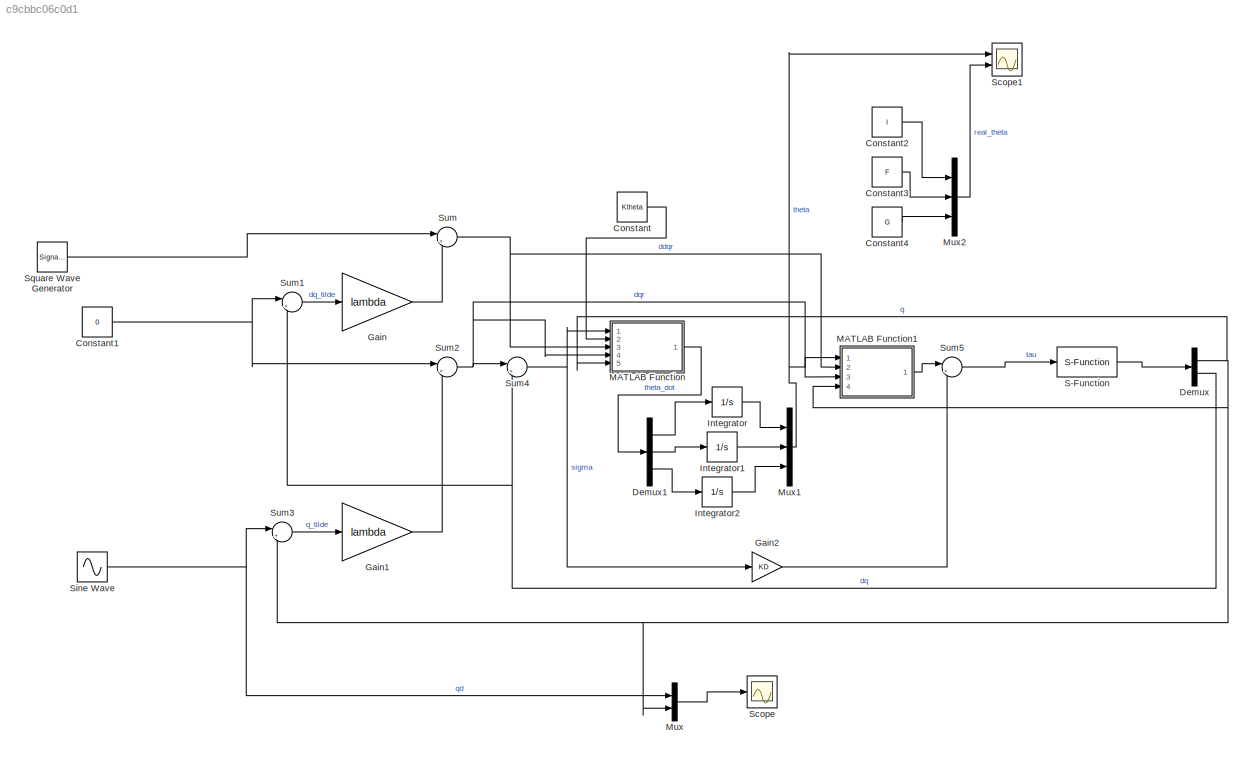
MODEL slx_c9cbbc06c0d1
KIND model
CONFIG AbsTol = auto
CONFIG EnableMultiTasking = off
CONFIG FixedStep = auto
CONFIG MaxStep = auto
CONFIG MinStep = auto
CONFIG RelTol = 1e-3
CONFIG SampleTimeConstraint = Unconstrained
CONFIG SolverName = VariableStepAuto
CONFIG StartTime = 0.0
CONFIG StopTime = 10.0
BLOCK [Constant] Constant
  Value = Ktheta
BLOCK [Constant] Constant1
  Value = 0
BLOCK [Constant] Constant2
  Value = I
BLOCK [Constant] Constant3
  Value = F
BLOCK [Constant] Constant4
  Value = G
BLOCK [Demux] Demux
  Outputs = 2
  Ports = [1, 2]
BLOCK [Demux] Demux1
  Outputs = 3
  Ports = [1, 3]
BLOCK [Gain] Gain
  Gain = lambda
BLOCK [Gain] Gain1
  Gain = lambda
BLOCK [Gain] Gain2
  Gain = KD
BLOCK [Integrator] Integrator
  InitialCondition = I_est
  Ports = [1, 1]
BLOCK [Integrator] Integrator1
  InitialCondition = F_est
  Ports = [1, 1]
BLOCK [Integrator] Integrator2
  InitialCondition = G_est
  Ports = [1, 1]
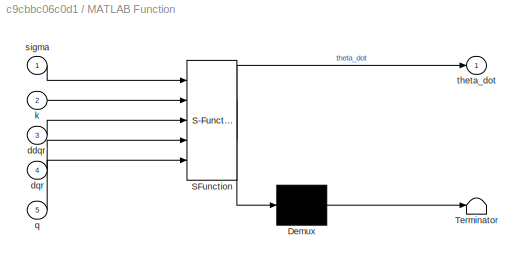
BLOCK [SubSystem] MATLAB Function
  ErrorFcn = Stateflow.Translate.translate
  PermitHierarchicalResolution = ExplicitOnly
  Ports = [5, 1]
  RequestExecContextInheritance = off
  SFBlockType = MATLAB Function
  TreatAsAtomicUnit = on
BLOCK [Demux] MATLAB Function/ Demux 
  Outputs = 1
  Ports = [1, 1]
BLOCK [S-Function] MATLAB Function/ SFunction 
  EnableBusSupport = on
  FunctionName = sf_sfun
  PortCounts = [5 2]
  Ports = [5, 2]
  SFcnIsStateOwnerBlock = off
  SFunctionDeploymentMode = off
  Tag = Stateflow S-Function 2
BLOCK [Terminator] MATLAB Function/ Terminator 
BLOCK [Inport] MATLAB Function/ddqr
  Port = 3
BLOCK [Inport] MATLAB Function/dqr
  Port = 4
BLOCK [Inport] MATLAB Function/k
  Port = 2
BLOCK [Inport] MATLAB Function/q
  Port = 5
BLOCK [Inport] MATLAB Function/sigma
BLOCK [Outport] MATLAB Function/theta_dot
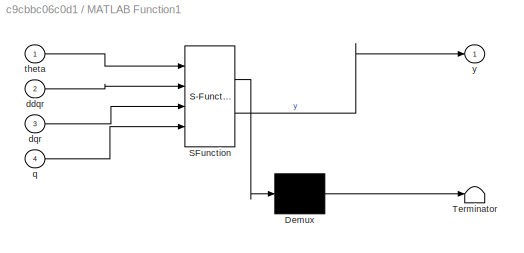
BLOCK [SubSystem] MATLAB Function1
  ErrorFcn = Stateflow.Translate.translate
  PermitHierarchicalResolution = ExplicitOnly
  Ports = [4, 1]
  RequestExecContextInheritance = off
  SFBlockType = MATLAB Function
  TreatAsAtomicUnit = on
BLOCK [Demux] MATLAB Function1/ Demux 
  Outputs = 1
  Ports = [1, 1]
BLOCK [S-Function] MATLAB Function1/ SFunction 
  EnableBusSupport = on
  FunctionName = sf_sfun
  PortCounts = [4 2]
  Ports = [4, 2]
  SFcnIsStateOwnerBlock = off
  SFunctionDeploymentMode = off
  Tag = Stateflow S-Function 1
BLOCK [Terminator] MATLAB Function1/ Terminator 
BLOCK [Inport] MATLAB Function1/ddqr
  Port = 2
BLOCK [Inport] MATLAB Function1/dqr
  Port = 3
BLOCK [Inport] MATLAB Function1/q
  Port = 4
BLOCK [Inport] MATLAB Function1/theta
BLOCK [Outport] MATLAB Function1/y
BLOCK [Mux] Mux
  DisplayOption = bar
  Inputs = 2
  Ports = [2, 1]
BLOCK [Mux] Mux1
  DisplayOption = bar
  Inputs = 3
  Ports = [3, 1]
BLOCK [Mux] Mux2
  DisplayOption = bar
  Inputs = 3
  Ports = [3, 1]
BLOCK [S-Function] S-Function
  EnableBusSupport = off
  FunctionName = fwd_dyn_joint_1dof
  Parameters = qi, dqi,I,F,G
  Ports = [1, 1]
  SFcnIsStateOwnerBlock = off
  SFunctionDeploymentMode = off
BLOCK [Scope] Scope
  Floating = off
  NumInputPorts = 1
  Ports = [1]
  ScopeSpecificationString = Simulink.scopes.TimeScopeBlockCfg('CurrentConfiguration', extmgr.ConfigurationSet(extmgr.Configuration('Core','General UI',true),extmgr.Configuration('Core','Source UI',true),extmgr.Configuration('Sources','WiredSimulink',true),extmgr.Configuration('Visuals','Time Domain',true,'SerializedDisplays',{struct('MinYLimReal','-1.25','MaxYLimReal','1.25015','YLabelReal','','MinYLimMag','0.00000','MaxYLim...<+1636ch>
BLOCK [Scope] Scope1
  Floating = off
  NumInputPorts = 2
  Ports = [2]
  ScopeSpecificationString = Simulink.scopes.TimeScopeBlockCfg('CurrentConfiguration', extmgr.ConfigurationSet(extmgr.Configuration('Core','General UI',true),extmgr.Configuration('Core','Source UI',true),extmgr.Configuration('Sources','WiredSimulink',true,'DataLoggingVariableName','ScopeData1'),extmgr.Configuration('Visuals','Time Domain',true,'SerializedDisplays',{struct('MinYLimReal','-0.08658','MaxYLimReal','0.66342','YLab...<+2191ch>
BLOCK [Sin] Sine Wave
  Amplitude = A
  Ports = [0, 1]
  SampleTime = 0
BLOCK [SignalGenerator] Square Wave Generator
  Amplitude = A
  Ports = [0, 1]
  Units = rad/sec
  WaveForm = square
BLOCK [Sum] Sum
  Inputs = |++
  Ports = [2, 1]
BLOCK [Sum] Sum1
  Inputs = |+-
  Ports = [2, 1]
BLOCK [Sum] Sum2
  Inputs = |++
  Ports = [2, 1]
BLOCK [Sum] Sum3
  Inputs = |+-
  Ports = [2, 1]
BLOCK [Sum] Sum4
  Inputs = |+-
  Ports = [2, 1]
BLOCK [Sum] Sum5
  Inputs = |++
  Ports = [2, 1]
NET Constant1:1 -> Sum1:1, Sum2:1
LINE Constant2:1 -> Mux2:1
LINE Constant3:1 -> Mux2:2
LINE Constant4:1 -> Mux2:3
LINE Constant:1 -> MATLAB Function:2
LINE Demux1:1 -> Integrator:1
LINE Demux1:2 -> Integrator1:1
LINE Demux1:3 -> Integrator2:1
NET Demux:1 -> MATLAB Function1:4, MATLAB Function:5, Mux:2, Sum3:2
NET Demux:2 -> Sum1:2, Sum4:2
LINE Gain1:1 -> Sum2:2
LINE Gain2:1 -> Sum5:2
LINE Gain:1 -> Sum:2
LINE Integrator1:1 -> Mux1:2
LINE Integrator2:1 -> Mux1:3
LINE Integrator:1 -> Mux1:1
LINE MATLAB Function1:1 -> Sum5:1
LINE MATLAB Function:1 -> Demux1:1
NET Mux1:1 -> MATLAB Function1:1, Scope1:1
LINE Mux2:1 -> Scope1:2
LINE Mux:1 -> Scope:1
LINE S-Function:1 -> Demux:1
NET Sine Wave:1 -> Mux:1, Sum3:1
LINE Square Wave Generator:1 -> Sum:1
LINE Sum1:1 -> Gain:1
NET Sum2:1 -> MATLAB Function1:3, MATLAB Function:4, Sum4:1
LINE Sum3:1 -> Gain1:1
NET Sum4:1 -> Gain2:1, MATLAB Function:1
LINE Sum5:1 -> S-Function:1
NET Sum:1 -> MATLAB Function1:2, MATLAB Function:3
note: NET lines group one-source signal fan-out (src -> all destinations, sorted); 1:1 wires keep LINE
CHART MATLAB Function1 states=1 transitions=1
  STATE_LABEL 'eML_blk_kernel()'
  STATE_LABEL 'SCRIPT:\nfunction y = fcn(theta, ddqr, dqr, q)\n\ny = [ddqr dqr sin(q)]*theta;\n'
CHART MATLAB Function states=1 transitions=1
  STATE_LABEL 'eML_blk_kernel()'
  STATE_LABEL 'SCRIPT:\nfunction theta_dot = fcn(sigma,k,ddqr,dqr,q)\n\ntheta_dot = k*[ddqr;dqr;sin(q)];\n'
CHART  states=0 transitions=0
CHART  states=0 transitions=0
